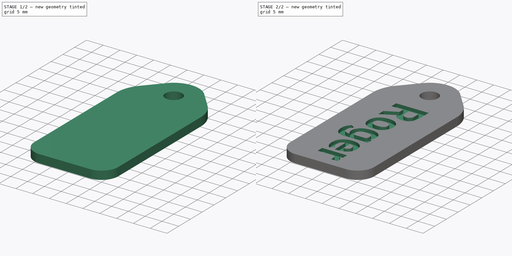
[diagram: build sequence overview — one tinted view per stage of 2, left to right]
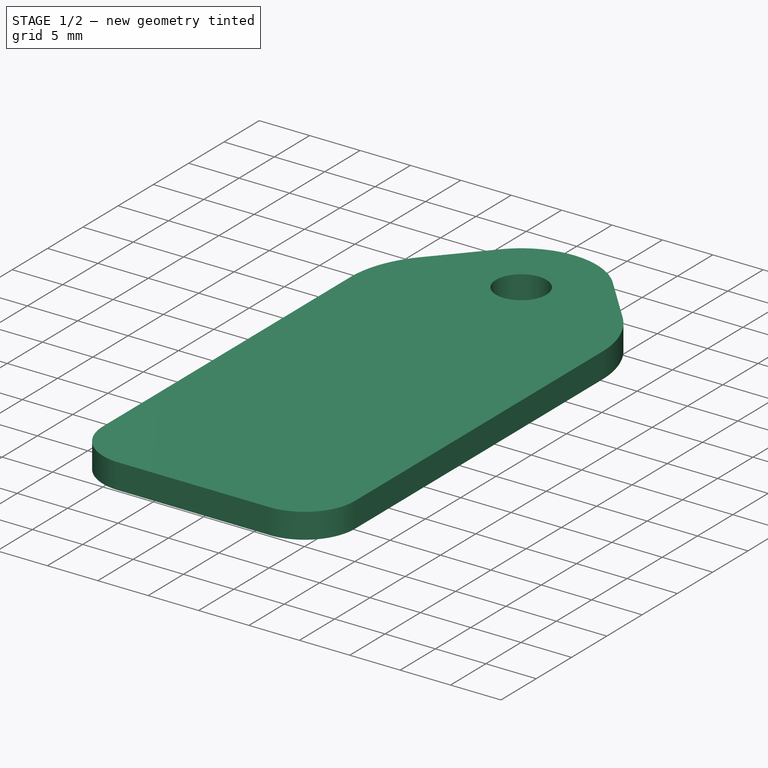
[diagram: stage 1 of 2 — iso view after this stage's code; geometry added in this stage tinted green]
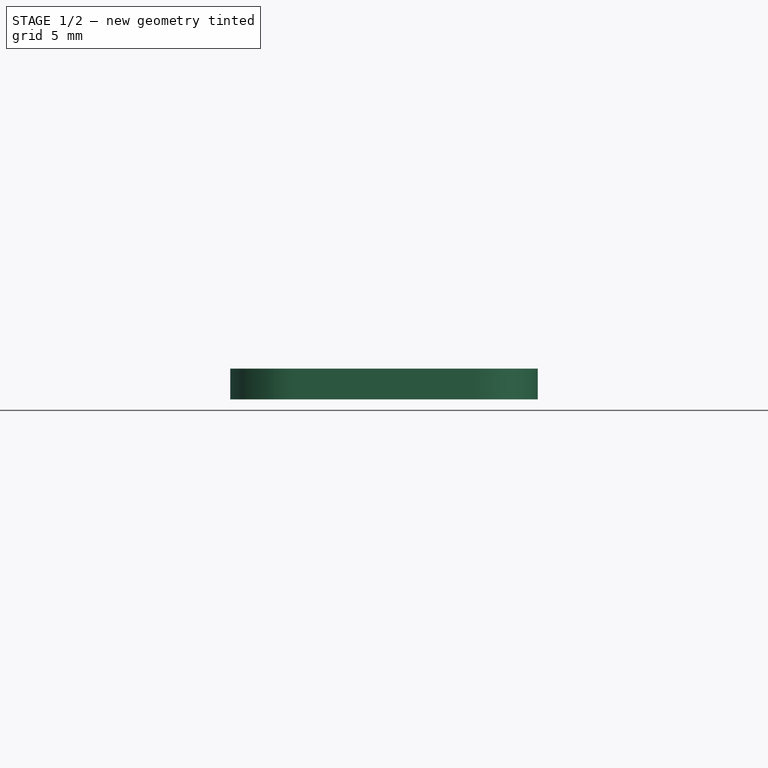
[diagram: stage 1 of 2 — front view after this stage's code; geometry added in this stage tinted green]
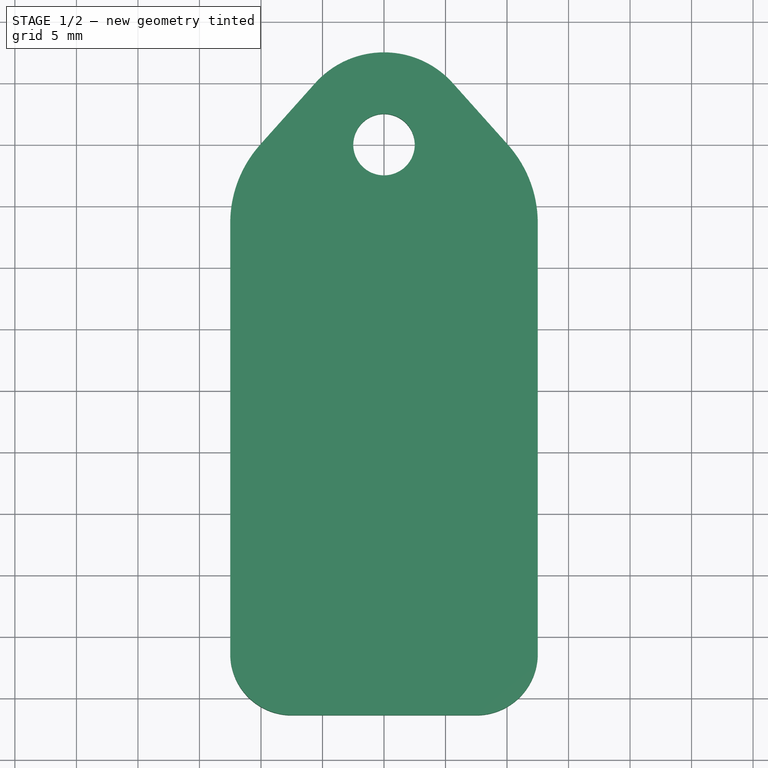
[diagram: stage 1 of 2 — top view after this stage's code; geometry added in this stage tinted green]
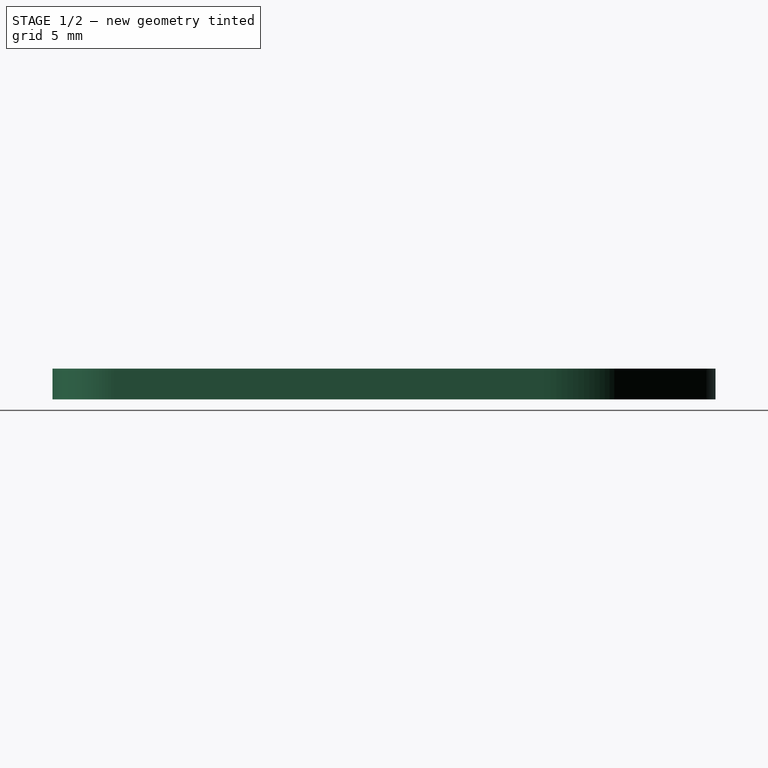
[diagram: stage 1 of 2 — right view after this stage's code; geometry added in this stage tinted green]
FCSTD DOCUMENT  (FreeCAD 0.20R29603 (Git))
Label: key tag
License: All rights reserved
LicenseURL: http://en.wikipedia.org/wiki/All_rights_reserved
objects: Sketcher::SketchObject×1, PartDesign::Pad×1, Part::Part2DObjectPython×1, PartDesign::Pocket×1, PartDesign::Body×1
note: 7 computed .brp shape members not serialized (recipe doc carries the construction recipe); baked Part::Feature solids carry a one-line shape summary decoded from their .brp

FEATURE [Sketcher::SketchObject] Sketch
  FullyConstrained = true
  MapMode = 5
  Support = -> [XY_Plane]
  sketch-geometry (11):
    g0: Circle CenterX=0 CenterY=9e-16 CenterZ=0 NormalX=0 NormalY=0 NormalZ=1 AngleXU=0 Radius=2.5
    g1: LineSegment StartX=-5.59017 StartY=5 StartZ=0 EndX=-10.0623 EndY=9e-16 EndZ=0
    g2: LineSegment StartX=-12.5 StartY=-6.38197 StartZ=0 EndX=-12.5 EndY=-41.382 EndZ=0
    g3: LineSegment StartX=-7.5 StartY=-46.382 StartZ=0 EndX=7.5 EndY=-46.382 EndZ=0
    g4: LineSegment StartX=12.5 StartY=-41.382 StartZ=0 EndX=12.5 EndY=-6.38197 EndZ=0
    g5: LineSegment StartX=10.0623 StartY=9e-16 StartZ=0 EndX=5.59017 EndY=5 EndZ=0
    g6: ArcOfCircle CenterX=0 CenterY=9e-16 CenterZ=0 NormalX=0 NormalY=0 NormalZ=1 AngleXU=0 Radius=7.5 StartAngle=0.729728 EndAngle=2.41186
    g7: ArcOfCircle CenterX=2.92705 CenterY=-6.38197 CenterZ=0 NormalX=0 NormalY=0 NormalZ=1 AngleXU=0 Radius=9.57295 StartAngle=0 EndAngle=0.729728
    g8: ArcOfCircle CenterX=-2.92705 CenterY=-6.38197 CenterZ=0 NormalX=0 NormalY=0 NormalZ=1 AngleXU=0 Radius=9.57295 StartAngle=2.41186 EndAngle=3.14159
    g9: ArcOfCircle CenterX=-7.5 CenterY=-41.382 CenterZ=0 NormalX=0 NormalY=0 NormalZ=1 AngleXU=0 Radius=5 StartAngle=3.14159 EndAngle=4.71239
    g10: ArcOfCircle CenterX=7.5 CenterY=-41.382 CenterZ=0 NormalX=0 NormalY=0 NormalZ=1 AngleXU=0 Radius=5 StartAngle=4.71239 EndAngle=6.28319
  constraints (24):
    c: Coincident(g0,g-1)
    c: Vertical(g2)
    c: Tangent(g1,g6) = -1.5708
    c: Tangent(g5,g6) = -1.5708
    c: Coincident(g6,g0)
    c: Tangent(g5,g7) = -1.5708
    c: Tangent(g4,g7) = -1.5708
    c: Tangent(g1,g8) = -1.5708
    c: Tangent(g2,g8) = -1.5708
    c: Tangent(g2,g9) = -1.5708
    c: Tangent(g3,g9) = -1.5708
    c: Tangent(g3,g10) = -1.5708
    c: Tangent(g4,g10) = -1.5708
    c: Equal(g9,g10)
    c: Symmetric(g9,g10,g-2)
    c: Vertical(g4)
    c: Diameter(g9) = 10
    c: Diameter(g0) = 5
    c: Symmetric(g8,g7,g-2)
    c: DistanceY(g0,g1) = 5
    c: Diameter(g6) = 15
    c: DistanceX(g2,g4) = 25
    c: DistanceY(g2,g2) = 35
    c: Horizontal(g1,g0)
FEATURE [PartDesign::Pad] Pad
  Direction = (0,0,1)
  Length = 2.5
  Length2 = 10
  Profile = -> Sketch
  ReferenceAxis = -> Sketch [N_Axis]
  Type = 0
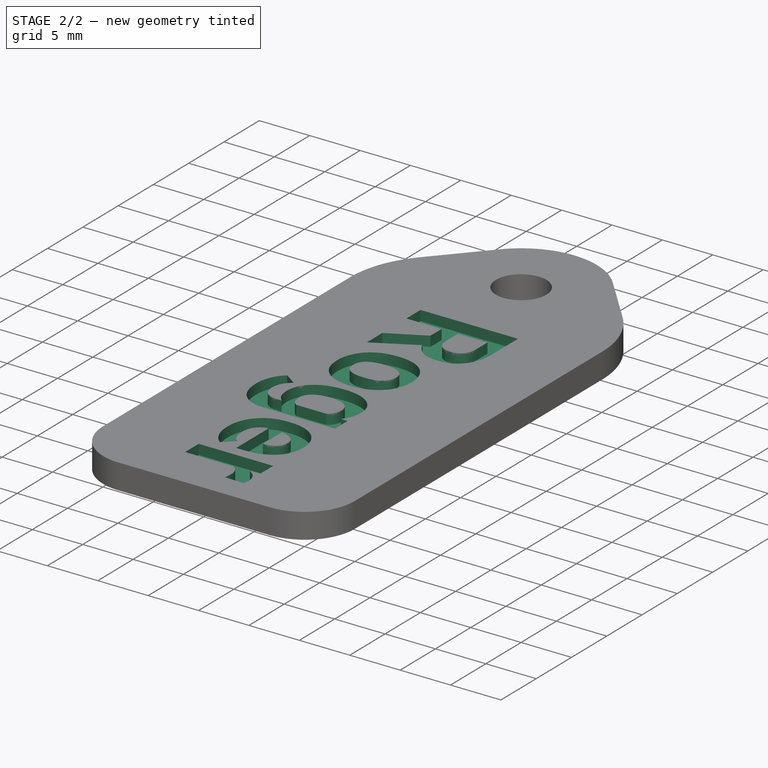
[diagram: stage 2 of 2 — iso view after this stage's code; geometry added in this stage tinted green]
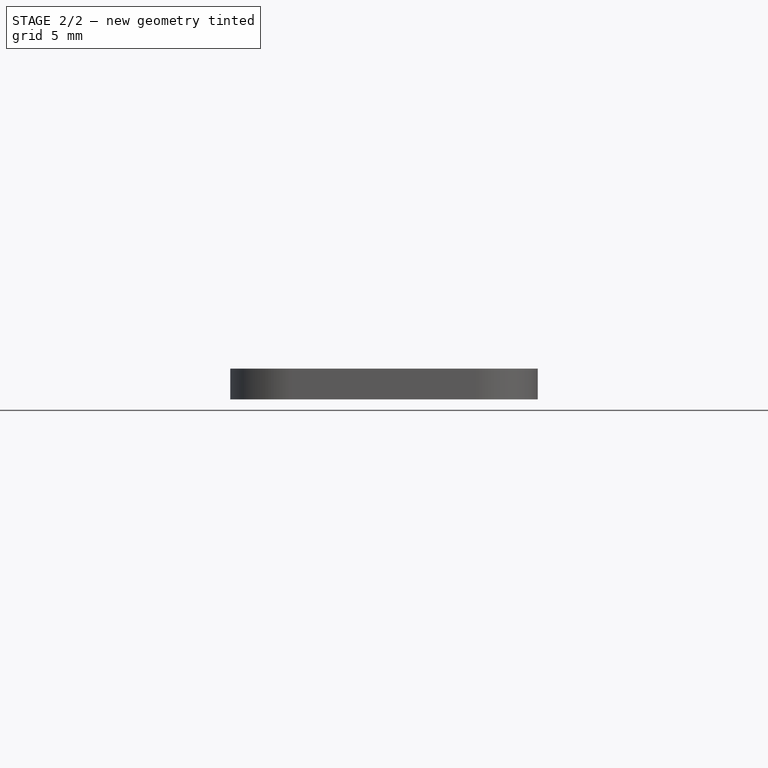
[diagram: stage 2 of 2 — front view after this stage's code; geometry added in this stage tinted green]
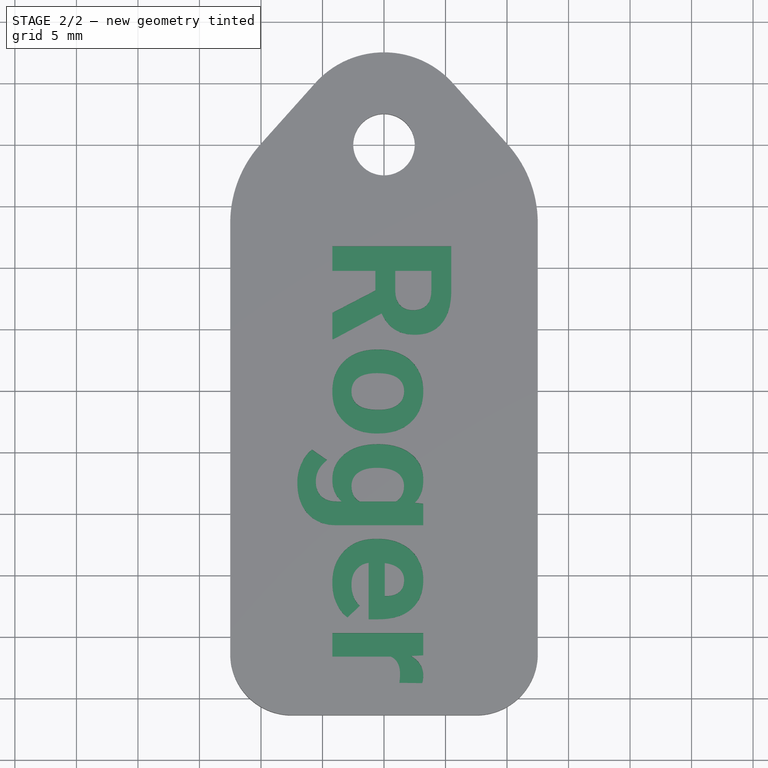
[diagram: stage 2 of 2 — top view after this stage's code; geometry added in this stage tinted green]
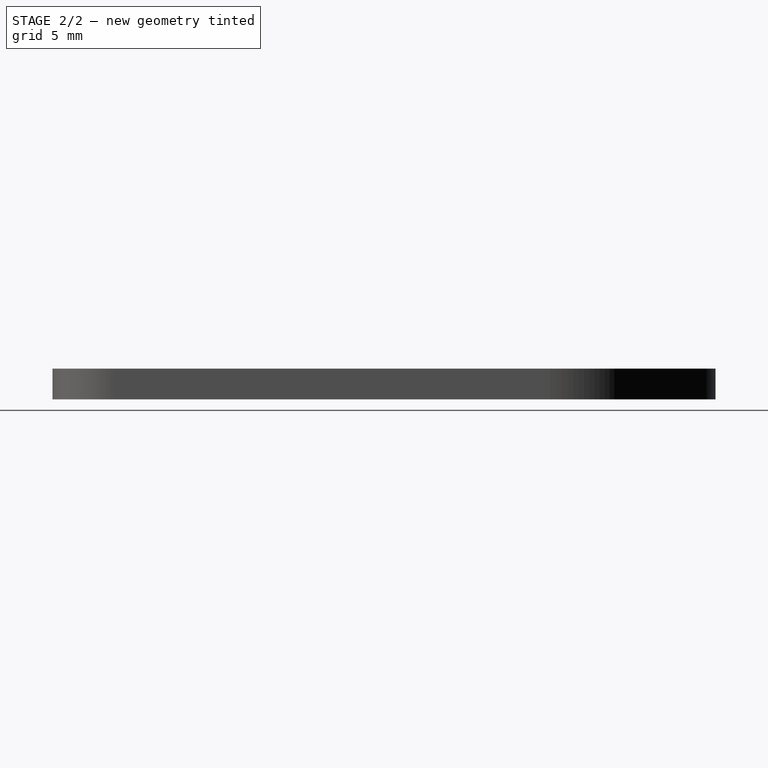
[diagram: stage 2 of 2 — right view after this stage's code; geometry added in this stage tinted green]
FEATURE [Part::Part2DObjectPython] ShapeString  # Draft 2D object (typed FeaturePython)
  FontFile = <userpath>/.fonts/Roboto/hinted/Roboto-Bold.ttf
  MakeFace = true
  Placement = pos=(-4.2,-7.4,3) rot=(0,0,1;4.71239rad)
  Size = 12
  String = Roger
  Tracking = 0
FEATURE [PartDesign::Pocket] Pocket
  BaseFeature = -> Pad
  Direction = (0,0,-1)
  Length = 1.5
  Length2 = 5
  Profile = -> ShapeString
  ReferenceAxis = -> ShapeString [N_Axis]
  Type = 0
FEATURE [PartDesign::Body] Body
  Group = -> [Sketch,Pad,ShapeString,Pocket]
  Origin = -> Origin
  Tip = -> Pocket
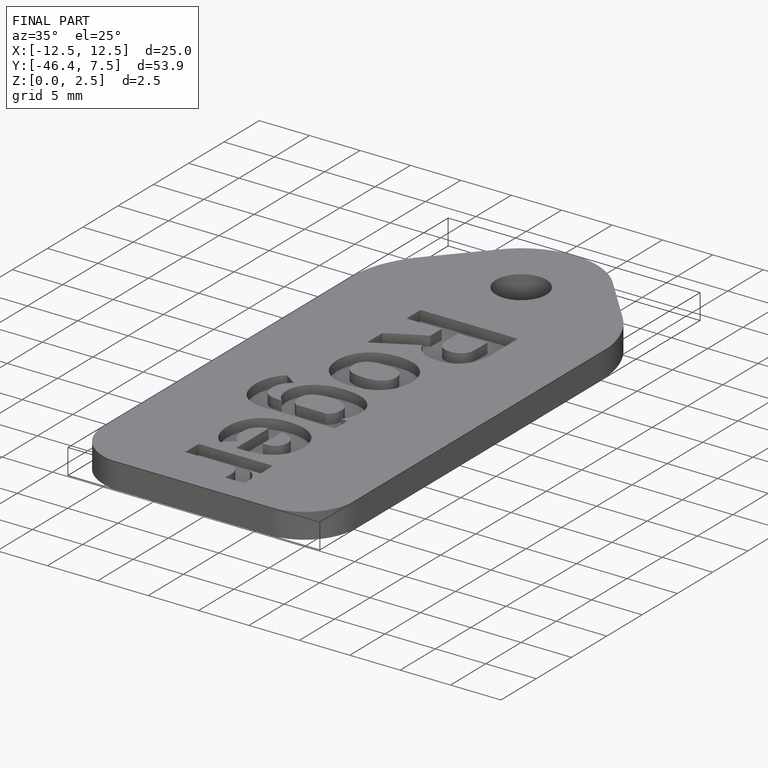
[diagram: finished part — iso view with bounding-box wireframe]
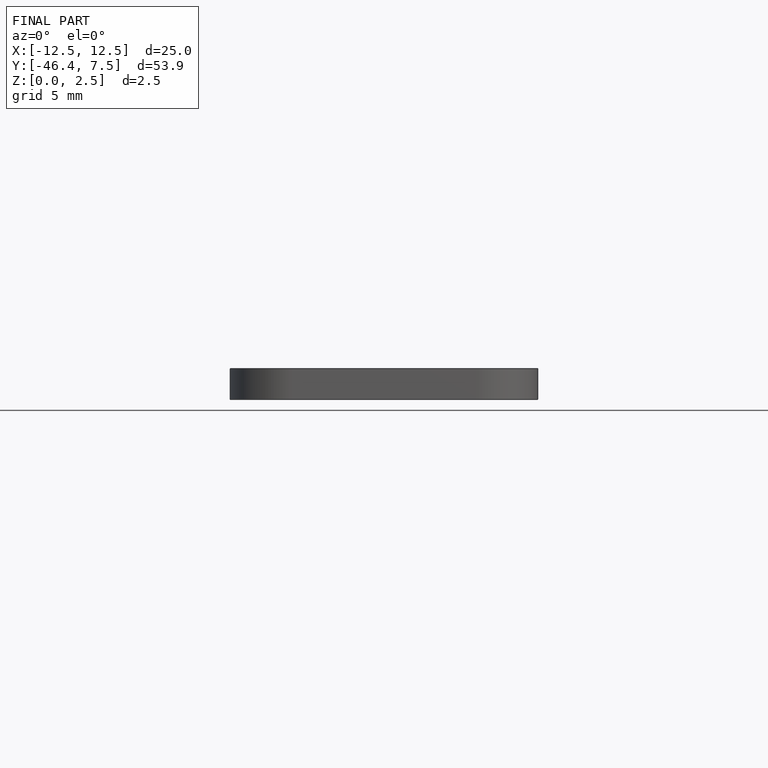
[diagram: finished part — front view with bounding-box wireframe]
